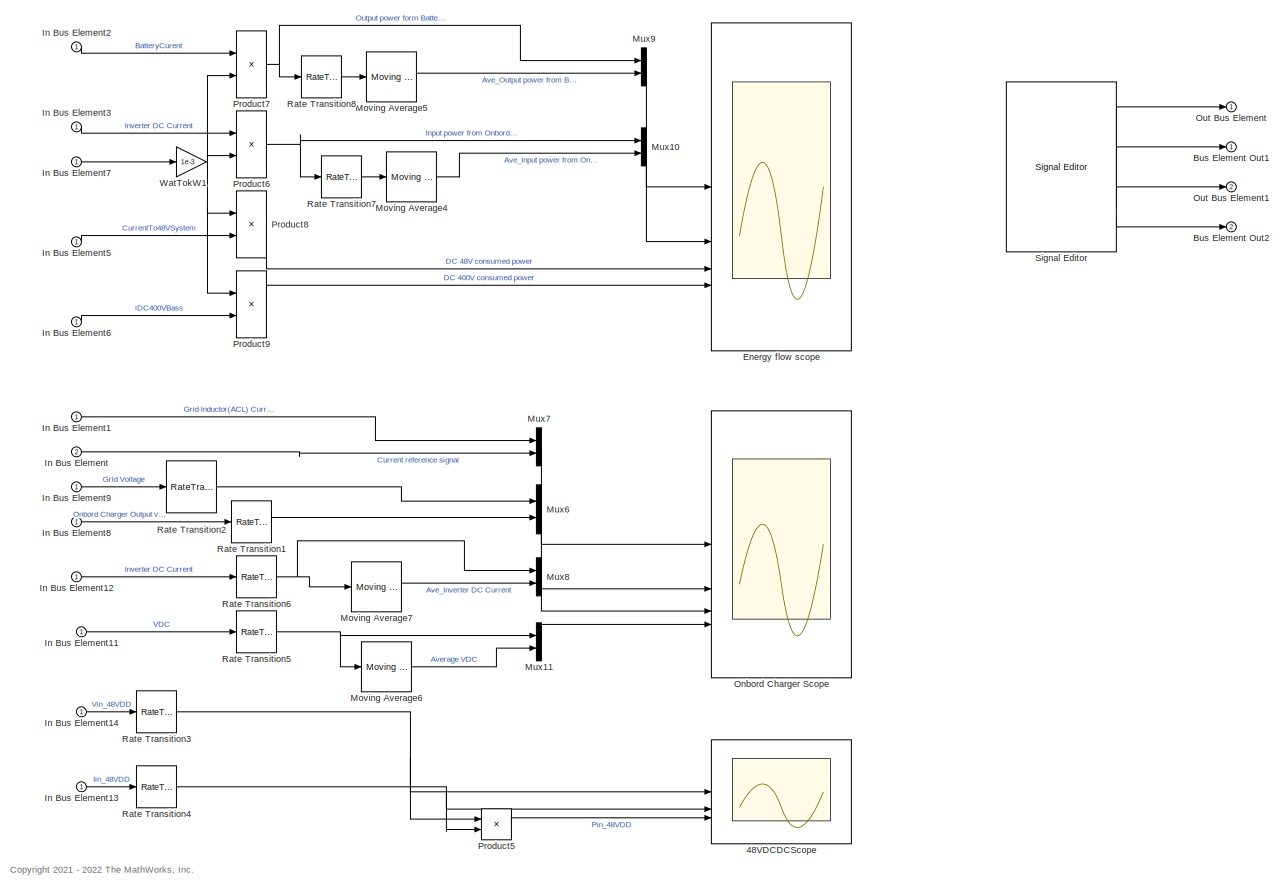
[diagram: root canvas - part 1/1, most of the canvas]
MODEL slx_7f72a1293fc5
KIND model
BLOCK [Scope] 48VDCDCScope
  Floating = off
  NumInputPorts = 3
  ScopeSpecificationString = Simulink.scopes.TimeScopeBlockCfg('CurrentConfiguration', extmgr.ConfigurationSet(extmgr.Configuration('Core','General UI',true),extmgr.Configuration('Core','Source UI',true),extmgr.Configuration('Sources','WiredSimulink',true,'DataLoggingVariableName','ScopeData1'),extmgr.Configuration('Visuals','Time Domain',true,'SerializedDisplays',{struct('MinYLimReal','47.67393','MaxYLimReal','50.25265','YLa...<+2888ch>
BLOCK [Outport] Bus Element Out1
BLOCK [Outport] Bus Element Out2
  Port = 2
BLOCK [Scope] Energy flow scope
  Floating = off
  NumInputPorts = 4
  ScopeSpecificationString = Simulink.scopes.TimeScopeBlockCfg('CurrentConfiguration', extmgr.ConfigurationSet(extmgr.Configuration('Core','General UI',true),extmgr.Configuration('Core','Source UI',true),extmgr.Configuration('Sources','WiredSimulink',true,'DataLoggingVariableName','ScopeData2'),extmgr.Configuration('Visuals','Time Domain',true,'SerializedDisplays',{struct('MinYLimReal','-7.48831','MaxYLimReal','16.61492','YLa...<+3667ch>
BLOCK [Inport] In Bus Element
  Port = 2
BLOCK [Inport] In Bus Element1
BLOCK [Inport] In Bus Element11
BLOCK [Inport] In Bus Element12
BLOCK [Inport] In Bus Element13
BLOCK [Inport] In Bus Element14
BLOCK [Inport] In Bus Element2
BLOCK [Inport] In Bus Element3
BLOCK [Inport] In Bus Element5
BLOCK [Inport] In Bus Element6
BLOCK [Inport] In Bus Element7
BLOCK [Inport] In Bus Element8
BLOCK [Inport] In Bus Element9
BLOCK [Reference] Moving Average4  REF=dspstat3/Moving
Average
  SourceBlock = dspstat3/Moving\nAverage
  SourceType = dsp.simulink.MovingAverage
BLOCK [Reference] Moving Average5  REF=dspstat3/Moving
Average
  SourceBlock = dspstat3/Moving\nAverage
  SourceType = dsp.simulink.MovingAverage
BLOCK [Reference] Moving Average6  REF=dspstat3/Moving
Average
  SourceBlock = dspstat3/Moving\nAverage
  SourceType = dsp.simulink.MovingAverage
BLOCK [Reference] Moving Average7  REF=dspstat3/Moving
Average
  SourceBlock = dspstat3/Moving\nAverage
  SourceType = dsp.simulink.MovingAverage
BLOCK [Mux] Mux10
  DisplayOption = bar
  Inputs = 2
BLOCK [Mux] Mux11
  DisplayOption = bar
  Inputs = 2
BLOCK [Mux] Mux6
  DisplayOption = bar
  Inputs = 2
BLOCK [Mux] Mux7
  DisplayOption = bar
  Inputs = 2
BLOCK [Mux] Mux8
  DisplayOption = bar
  Inputs = 2
BLOCK [Mux] Mux9
  DisplayOption = bar
  Inputs = 2
BLOCK [Scope] Onbord Charger Scope
  Floating = off
  NumInputPorts = 4
  ScopeSpecificationString = Simulink.scopes.TimeScopeBlockCfg('CurrentConfiguration', extmgr.ConfigurationSet(extmgr.Configuration('Core','General UI',true),extmgr.Configuration('Core','Source UI',true),extmgr.Configuration('Sources','WiredSimulink',true,'DataLoggingVariableName','ScopeData3'),extmgr.Configuration('Visuals','Time Domain',true,'SerializedDisplays',{struct('MinYLimReal','-51.8883','MaxYLimReal','51.46783','YLa...<+3572ch>
BLOCK [Outport] Out Bus Element
BLOCK [Outport] Out Bus Element1
  Port = 2
BLOCK [Product] Product5
BLOCK [Product] Product6
BLOCK [Product] Product7
BLOCK [Product] Product8
BLOCK [Product] Product9
BLOCK [RateTransition] Rate Transition1
  OutPortSampleTime = 1/1000
BLOCK [RateTransition] Rate Transition2
  OutPortSampleTime = 1/1000
BLOCK [RateTransition] Rate Transition3
  OutPortSampleTime = 1/1000
BLOCK [RateTransition] Rate Transition4
  OutPortSampleTime = 1/1000
BLOCK [RateTransition] Rate Transition5
  OutPortSampleTime = 1/1000
BLOCK [RateTransition] Rate Transition6
  OutPortSampleTime = 1/100
BLOCK [RateTransition] Rate Transition7
  OutPortSampleTime = 1/1000
BLOCK [RateTransition] Rate Transition8
  OutPortSampleTime = 1/1000
BLOCK [Reference] Signal Editor  REF=SignalEditorBlockLib/Signal Editor
  SourceBlock = SignalEditorBlockLib/Signal Editor
  SourceType = SignalEditor
  UserDataPersistent = on
BLOCK [Gain] WatTokW1
  Gain = 1e-3
ANNOTATION (root): <copyright redacted>
LINE In Bus Element11:1 -> Rate Transition5:1
LINE In Bus Element12:1 -> Rate Transition6:1
LINE In Bus Element13:1 -> Rate Transition4:1
LINE In Bus Element14:1 -> Rate Transition3:1
LINE In Bus Element1:1 -> Mux7:1
LINE In Bus Element2:1 -> Product7:1
LINE In Bus Element3:1 -> Product6:1
LINE In Bus Element5:1 -> Product8:2
LINE In Bus Element6:1 -> Product9:2
LINE In Bus Element7:1 -> WatTokW1:1
LINE In Bus Element8:1 -> Rate Transition1:1
LINE In Bus Element9:1 -> Rate Transition2:1
LINE In Bus Element:1 -> Mux7:2
LINE Moving Average4:1 -> Mux10:2
LINE Moving Average5:1 -> Mux9:2
LINE Moving Average6:1 -> Mux11:2
LINE Moving Average7:1 -> Mux8:2
LINE Mux10:1 -> Energy flow scope:2
LINE Mux11:1 -> Onbord Charger Scope:4
LINE Mux6:1 -> Onbord Charger Scope:2
LINE Mux7:1 -> Onbord Charger Scope:1
LINE Mux8:1 -> Onbord Charger Scope:3
LINE Mux9:1 -> Energy flow scope:1
LINE Product5:1 -> 48VDCDCScope:3
NET Product6:1 -> Mux10:1, Rate Transition7:1
NET Product7:1 -> Mux9:1, Rate Transition8:1
LINE Product8:1 -> Energy flow scope:3
LINE Product9:1 -> Energy flow scope:4
LINE Rate Transition1:1 -> Mux6:2
LINE Rate Transition2:1 -> Mux6:1
NET Rate Transition3:1 -> 48VDCDCScope:1, Product5:1
NET Rate Transition4:1 -> 48VDCDCScope:2, Product5:2
NET Rate Transition5:1 -> Moving Average6:1, Mux11:1
NET Rate Transition6:1 -> Moving Average7:1, Mux8:1
LINE Rate Transition7:1 -> Moving Average4:1
LINE Rate Transition8:1 -> Moving Average5:1
LINE Signal Editor:1 -> Out Bus Element:1
LINE Signal Editor:2 -> Bus Element Out1:1
LINE Signal Editor:3 -> Out Bus Element1:1
LINE Signal Editor:4 -> Bus Element Out2:1
NET WatTokW1:1 -> Product6:2, Product7:2, Product8:1, Product9:1
note: NET lines group one-source signal fan-out (src -> all destinations, sorted); 1:1 wires keep LINE
